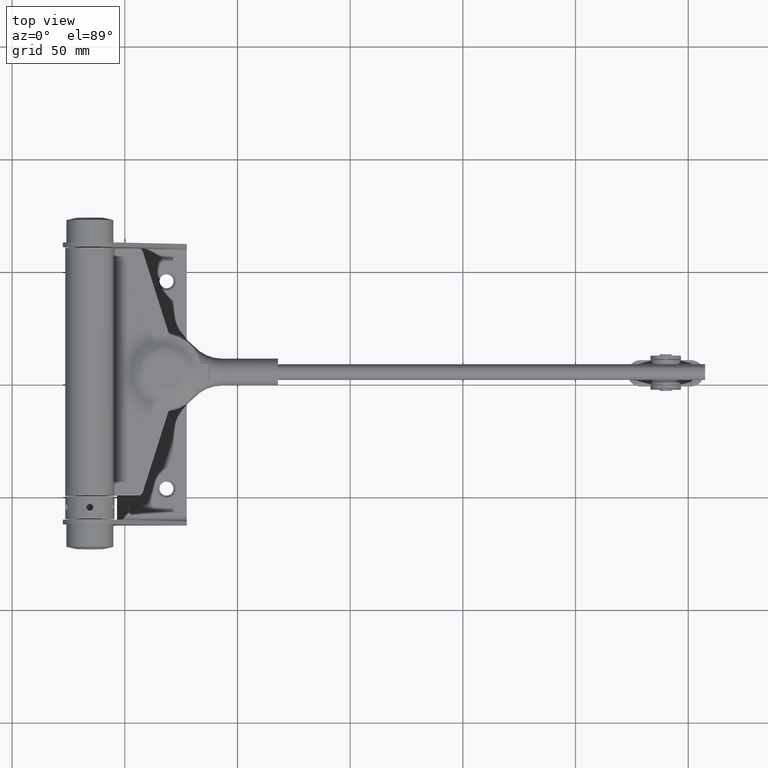
[diagram: clean part render]
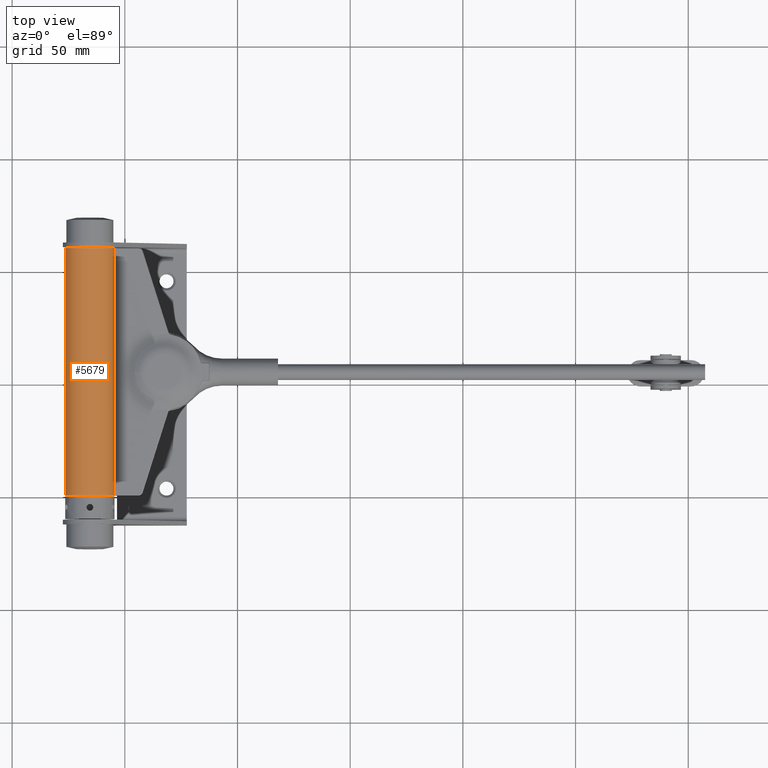
[diagram: same view with one face highlighted and labeled with its STEP entity id]
A machine part, top view. The second image highlights one B-rep face of the part: STEP entity #5679.
In plain terms, the highlighted cylindrical surface (edge-blend (fillet) strip) has radius 11 mm, axis along (0, -1, 0).
Its self-contained STEP definition (entity closure, byte-faithful):
#215 = CARTESIAN_POINT ( 'NONE',  ( -0.6320638355095602456, -55.00000000000001421, 10.98262137533319738 ) ) ;
#1047 = ORIENTED_EDGE ( 'NONE', *, *, #17980, .T. ) ;
#1069 = VERTEX_POINT ( 'NONE', #5964 ) ;
#1606 = CARTESIAN_POINT ( 'NONE',  ( -0.5000000000000004441, 54.99999999999999289, 10.98863048791800878 ) ) ;
#1828 = DIRECTION ( 'NONE',  ( 4.307734363867649793E-30, 1.000000000000000000, -2.366582715663036467E-30 ) ) ;
#1963 = AXIS2_PLACEMENT_3D ( 'NONE', #23410, #14377, #3533 ) ;
#2023 = CARTESIAN_POINT ( 'NONE',  ( -0.9455413487506164616, -54.76169591073746545, 10.95967659329186716 ) ) ;
#2210 = B_SPLINE_CURVE_WITH_KNOTS ( 'NONE', 3,
 ( #14507, #20058, #8860, #12749, #3500, #23386 ),
 .UNSPECIFIED., .F., .F.,
 ( 4, 2, 4 ),
 ( 0.000000000000000000, 0.0003909636995437009376, 0.0007819273990874018752 ),
 .UNSPECIFIED. ) ;
#3279 = CARTESIAN_POINT ( 'NONE',  ( 0.000000000000000000, 55.00000000000000000, 0.000000000000000000 ) ) ;
#3476 = ORIENTED_EDGE ( 'NONE', *, *, #14775, .T. ) ;
#3500 = CARTESIAN_POINT ( 'NONE',  ( 0.6320576236962814898, -55.00000000000000711, 10.98262165798048962 ) ) ;
#3533 = DIRECTION ( 'NONE',  ( 2.465190328815644376E-32, 0.000000000000000000, 1.000000000000000000 ) ) ;
#3668 = EDGE_CURVE ( 'NONE', #5868, #6556, #8979, .T. ) ;
#4070 = VERTEX_POINT ( 'NONE', #6716 ) ;
#4823 = CARTESIAN_POINT ( 'NONE',  ( 0.9455413487505525127, 54.76169591073738019, 10.95967659329187072 ) ) ;
#4879 = DIRECTION ( 'NONE',  ( -4.307734363867649793E-30, -1.000000000000000000, 2.366582715663036467E-30 ) ) ;
#4925 = VERTEX_POINT ( 'NONE', #10686 ) ;
#4960 = VECTOR ( 'NONE', #17689, 1000.000000000000000 ) ;
#5370 = CARTESIAN_POINT ( 'NONE',  ( -1.000000000000000888, 54.49999999999999289, 10.95445115010337744 ) ) ;
#5679 = ADVANCED_FACE ( 'NONE', ( #14264 ), #8322, .T. ) ;
#5868 = VERTEX_POINT ( 'NONE', #22961 ) ;
#5964 = CARTESIAN_POINT ( 'NONE',  ( 1.000000000000000888, 54.49999999999999289, 10.95445115010337744 ) ) ;
#6556 = VERTEX_POINT ( 'NONE', #1606 ) ;
#6716 = CARTESIAN_POINT ( 'NONE',  ( 0.5000000000000004441, -55.00000000000000711, 10.98863048791800701 ) ) ;
#7219 = LINE ( 'NONE', #15761, #4960 ) ;
#7384 = DIRECTION ( 'NONE',  ( 2.465190328815644376E-32, 0.000000000000000000, 1.000000000000000000 ) ) ;
#7583 = CARTESIAN_POINT ( 'NONE',  ( -1.000000000000000888, -54.63220651640506986, 10.95445115010337389 ) ) ;
#7593 = CARTESIAN_POINT ( 'NONE',  ( -0.7613903877043949331, 54.94571469679299014, 10.97400699589121587 ) ) ;
#7629 = VERTEX_POINT ( 'NONE', #21307 ) ;
#7739 = CARTESIAN_POINT ( 'NONE',  ( -0.6320576236962779371, 55.00000000000000000, 10.98262165798049139 ) ) ;
#8111 = VERTEX_POINT ( 'NONE', #15540 ) ;
#8322 = CYLINDRICAL_SURFACE ( 'NONE', #18228, 11.00000000000007816 ) ;
#8860 = CARTESIAN_POINT ( 'NONE',  ( 0.9457098844810366556, -54.76139859333464699, 10.95966138540570789 ) ) ;
#8979 = B_SPLINE_CURVE_WITH_KNOTS ( 'NONE', 3,
 ( #5370, #17994, #19869, #7593, #7739, #18483 ),
 .UNSPECIFIED., .F., .F.,
 ( 4, 2, 4 ),
 ( 0.000000000000000000, 0.0003909636995437009376, 0.0007819273990874018752 ),
 .UNSPECIFIED. ) ;
#9345 = CARTESIAN_POINT ( 'NONE',  ( -1.000000000000000888, -54.50000000000000711, 10.95445115010337744 ) ) ;
#9461 = EDGE_LOOP ( 'NONE', ( #21346, #1047, #11479, #15833, #22926, #3476, #14132, #19654 ) ) ;
#10027 = AXIS2_PLACEMENT_3D ( 'NONE', #14413, #1828, #7384 ) ;
#10345 = DIRECTION ( 'NONE',  ( -2.465190328815644376E-32, 0.000000000000000000, -1.000000000000000000 ) ) ;
#10379 = CARTESIAN_POINT ( 'NONE',  ( 0.5000000000000004441, 54.99999999999999289, 10.98863048791800878 ) ) ;
#10686 = CARTESIAN_POINT ( 'NONE',  ( 0.5000000000000004441, 54.99999999999999289, 10.98863048791800878 ) ) ;
#10768 = B_SPLINE_CURVE_WITH_KNOTS ( 'NONE', 3,
 ( #10379, #17434, #15590, #4823, #15669, #19321 ),
 .UNSPECIFIED., .F., .F.,
 ( 4, 2, 4 ),
 ( 0.000000000000000000, 0.0003909633440213430735, 0.0007819266880426861471 ),
 .UNSPECIFIED. ) ;
#10907 = DIRECTION ( 'NONE',  ( -4.307734363867649793E-30, -1.000000000000000000, 2.366582715663036467E-30 ) ) ;
#11226 = CARTESIAN_POINT ( 'NONE',  ( 1.000000000000000888, -54.50000000000000711, 10.95445115010337744 ) ) ;
#11479 = ORIENTED_EDGE ( 'NONE', *, *, #16376, .T. ) ;
#12749 = CARTESIAN_POINT ( 'NONE',  ( 0.7613903877043440849, -54.94571469679294040, 10.97400699589121942 ) ) ;
#12832 = LINE ( 'NONE', #23404, #15686 ) ;
#14072 = B_SPLINE_CURVE_WITH_KNOTS ( 'NONE', 3,
 ( #18310, #215, #16509, #2023, #7583, #9345 ),
 .UNSPECIFIED., .F., .F.,
 ( 4, 2, 4 ),
 ( 0.000000000000000000, 0.0003909633440213430735, 0.0007819266880426861471 ),
 .UNSPECIFIED. ) ;
#14132 = ORIENTED_EDGE ( 'NONE', *, *, #19091, .F. ) ;
#14264 = FACE_OUTER_BOUND ( 'NONE', #9461, .T. ) ;
#14377 = DIRECTION ( 'NONE',  ( 4.307734363867649793E-30, 1.000000000000000000, -2.366582715663036467E-30 ) ) ;
#14413 = CARTESIAN_POINT ( 'NONE',  ( 0.000000000000000000, -55.00000000000000000, 0.000000000000000000 ) ) ;
#14499 = EDGE_CURVE ( 'NONE', #4925, #6556, #23483, .T. ) ;
#14507 = CARTESIAN_POINT ( 'NONE',  ( 1.000000000000000888, -54.50000000000000711, 10.95445115010337744 ) ) ;
#14775 = EDGE_CURVE ( 'NONE', #7629, #8111, #14072, .T. ) ;
#15540 = CARTESIAN_POINT ( 'NONE',  ( -1.000000000000000888, -54.50000000000000711, 10.95445115010337744 ) ) ;
#15590 = CARTESIAN_POINT ( 'NONE',  ( 0.7610640920790630037, 54.94591185560614832, 10.97403029517845674 ) ) ;
#15669 = CARTESIAN_POINT ( 'NONE',  ( 1.000000000000001110, 54.63220651640504855, 10.95445115010337744 ) ) ;
#15686 = VECTOR ( 'NONE', #10907, 1000.000000000000000 ) ;
#15761 = CARTESIAN_POINT ( 'NONE',  ( 1.000000000000000888, 54.99999999999999289, 10.95445115010337744 ) ) ;
#15833 = ORIENTED_EDGE ( 'NONE', *, *, #20760, .T. ) ;
#16376 = EDGE_CURVE ( 'NONE', #1069, #22986, #7219, .T. ) ;
#16509 = CARTESIAN_POINT ( 'NONE',  ( -0.7610640920790987529, -54.94591185560618385, 10.97403029517845496 ) ) ;
#17434 = CARTESIAN_POINT ( 'NONE',  ( 0.6320638355095565819, 55.00000000000000000, 10.98262137533319915 ) ) ;
#17689 = DIRECTION ( 'NONE',  ( -4.307734363867649793E-30, -1.000000000000000000, 2.366582715663036467E-30 ) ) ;
#17980 = EDGE_CURVE ( 'NONE', #4925, #1069, #10768, .T. ) ;
#17994 = CARTESIAN_POINT ( 'NONE',  ( -1.000000000000000666, 54.63220192141692166, 10.95445115010337567 ) ) ;
#18228 = AXIS2_PLACEMENT_3D ( 'NONE', #3279, #4879, #10345 ) ;
#18310 = CARTESIAN_POINT ( 'NONE',  ( -0.5000000000000004441, -55.00000000000000711, 10.98863048791800701 ) ) ;
#18483 = CARTESIAN_POINT ( 'NONE',  ( -0.5000000000000004441, 54.99999999999999289, 10.98863048791800878 ) ) ;
#18806 = CIRCLE ( 'NONE', #10027, 11.00000000000007816 ) ;
#19091 = EDGE_CURVE ( 'NONE', #5868, #8111, #12832, .T. ) ;
#19321 = CARTESIAN_POINT ( 'NONE',  ( 1.000000000000000888, 54.49999999999999289, 10.95445115010337744 ) ) ;
#19654 = ORIENTED_EDGE ( 'NONE', *, *, #3668, .T. ) ;
#19869 = CARTESIAN_POINT ( 'NONE',  ( -0.9457098844811088201, 54.76139859333470383, 10.95966138540570078 ) ) ;
#20058 = CARTESIAN_POINT ( 'NONE',  ( 1.000000000000000888, -54.63220192141695009, 10.95445115010337922 ) ) ;
#20760 = EDGE_CURVE ( 'NONE', #22986, #4070, #2210, .T. ) ;
#21214 = EDGE_CURVE ( 'NONE', #4070, #7629, #18806, .T. ) ;
#21307 = CARTESIAN_POINT ( 'NONE',  ( -0.5000000000000004441, -55.00000000000000711, 10.98863048791800701 ) ) ;
#21346 = ORIENTED_EDGE ( 'NONE', *, *, #14499, .F. ) ;
#22926 = ORIENTED_EDGE ( 'NONE', *, *, #21214, .T. ) ;
#22961 = CARTESIAN_POINT ( 'NONE',  ( -1.000000000000000888, 54.49999999999999289, 10.95445115010337744 ) ) ;
#22986 = VERTEX_POINT ( 'NONE', #11226 ) ;
#23386 = CARTESIAN_POINT ( 'NONE',  ( 0.5000000000000004441, -55.00000000000000711, 10.98863048791800701 ) ) ;
#23404 = CARTESIAN_POINT ( 'NONE',  ( -1.000000000000000888, 54.99999999999999289, 10.95445115010337744 ) ) ;
#23410 = CARTESIAN_POINT ( 'NONE',  ( 0.000000000000000000, 55.00000000000000000, 0.000000000000000000 ) ) ;
#23483 = CIRCLE ( 'NONE', #1963, 11.00000000000007816 ) ;